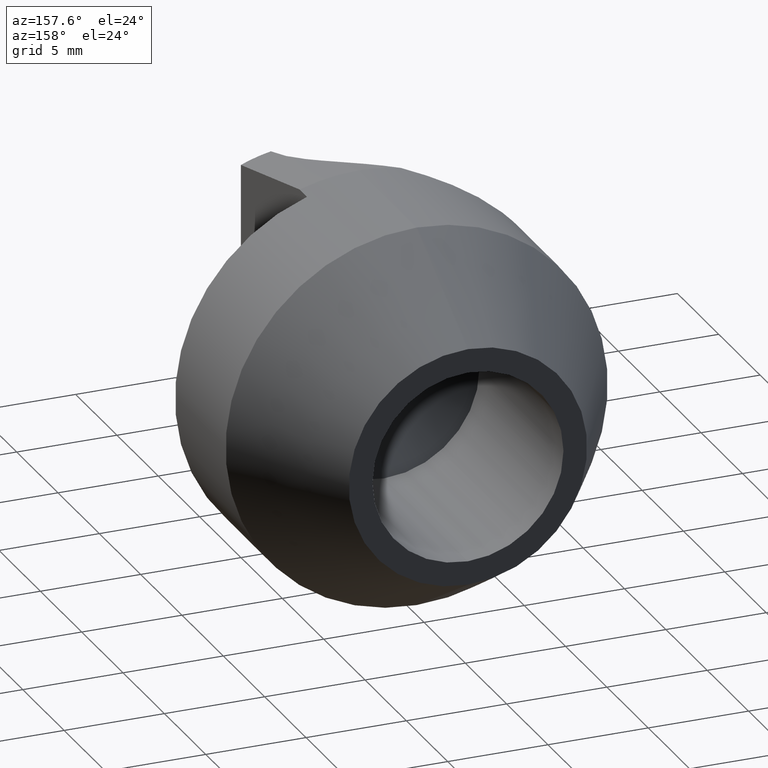
[diagram: clean part render]
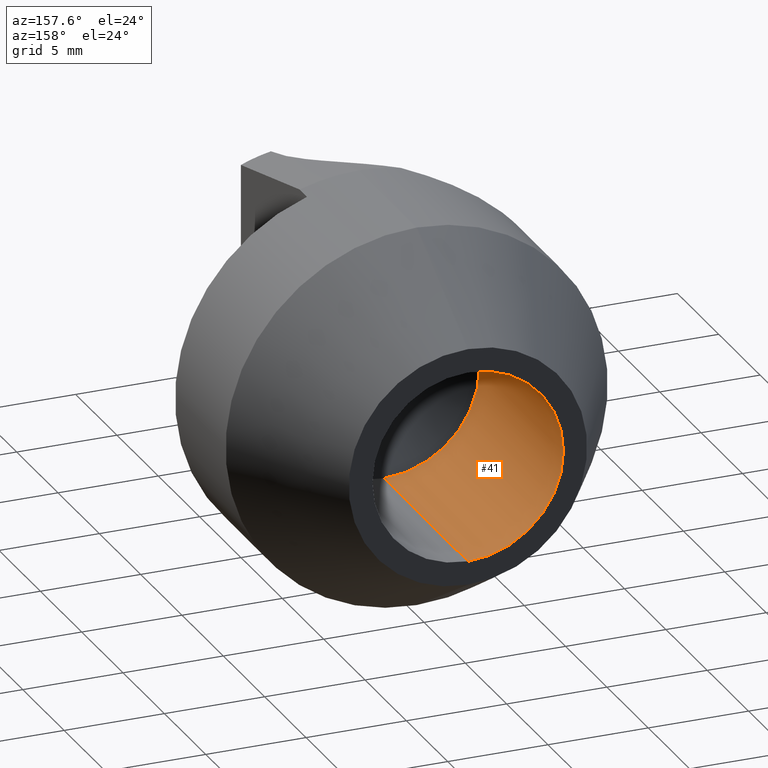
[diagram: same view with one face highlighted and labeled with its STEP entity id]
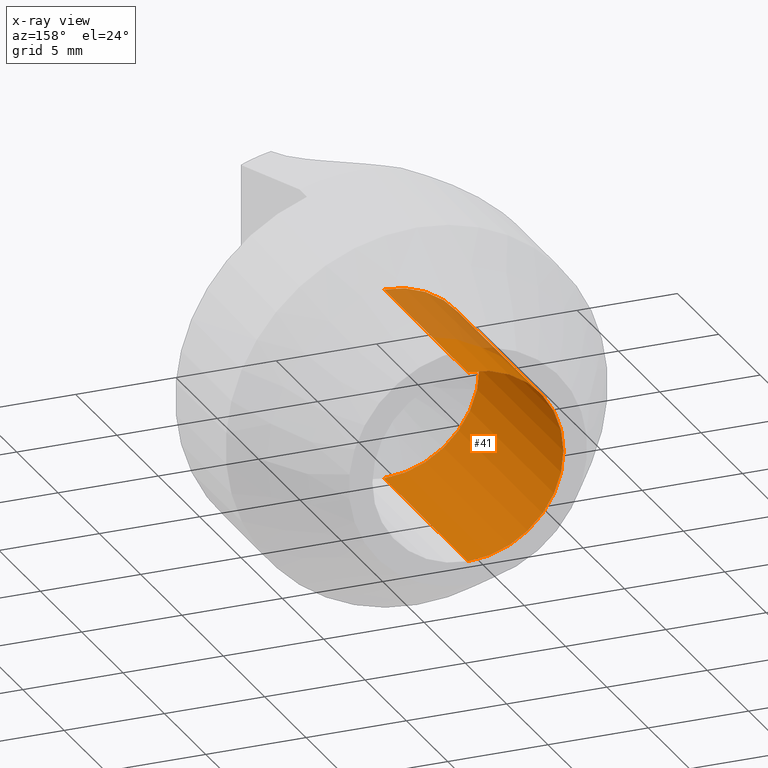
[diagram: x-ray of the same camera — body ghosted, the highlighted face saturated]
A machine part, auxiliary view. The second image highlights one B-rep face of the part: STEP entity #41.
The next image is the same camera in x-ray: the body ghosted, the highlighted face saturated — about 12% of this face is hidden behind the body in this view.
In plain terms, the highlighted cylindrical surface (partial cylindrical patch) has radius 4.7625 mm, axis along (-0, 1, -0).
Its self-contained STEP definition (entity closure, byte-faithful):
#8 = AXIS2_PLACEMENT_3D ( 'NONE', #470, #263, #225 ) ;
#29 = VERTEX_POINT ( 'NONE', #527 ) ;
#41 = ADVANCED_FACE ( 'NONE', ( #85 ), #133, .F. ) ;
#61 = LINE ( 'NONE', #500, #315 ) ;
#66 = DIRECTION ( 'NONE',  ( 0.000000000000000000, 0.000000000000000000, 1.000000000000000000 ) ) ;
#85 = FACE_OUTER_BOUND ( 'NONE', #352, .T. ) ;
#96 = AXIS2_PLACEMENT_3D ( 'NONE', #515, #377, #66 ) ;
#104 = DIRECTION ( 'NONE',  ( -0.000000000000000000, 1.000000000000000000, -0.000000000000000000 ) ) ;
#120 = VERTEX_POINT ( 'NONE', #195 ) ;
#126 = ORIENTED_EDGE ( 'NONE', *, *, #131, .F. ) ;
#131 = EDGE_CURVE ( 'NONE', #29, #251, #61, .T. ) ;
#133 = CYLINDRICAL_SURFACE ( 'NONE', #8, 0.1874999999999998890 ) ;
#137 = CARTESIAN_POINT ( 'NONE',  ( 2.296212748401285877E-17, 0.8000000000000000444, -0.1874999999999998890 ) ) ;
#144 = AXIS2_PLACEMENT_3D ( 'NONE', #360, #479, #313 ) ;
#195 = CARTESIAN_POINT ( 'NONE',  ( 2.296212748401286185E-17, 0.8000000000000000444, -0.1874999999999999167 ) ) ;
#225 = DIRECTION ( 'NONE',  ( 0.000000000000000000, 0.000000000000000000, 1.000000000000000000 ) ) ;
#238 = CARTESIAN_POINT ( 'NONE',  ( 2.296212748401285260E-17, 0.4000000000000000777, -0.1874999999999998335 ) ) ;
#250 = CARTESIAN_POINT ( 'NONE',  ( 0.000000000000000000, 0.8000000000000000444, 0.1874999999999999167 ) ) ;
#251 = VERTEX_POINT ( 'NONE', #250 ) ;
#263 = DIRECTION ( 'NONE',  ( -0.000000000000000000, 1.000000000000000000, -0.000000000000000000 ) ) ;
#279 = EDGE_CURVE ( 'NONE', #120, #251, #523, .T. ) ;
#291 = VECTOR ( 'NONE', #487, 39.37007874015748143 ) ;
#303 = VERTEX_POINT ( 'NONE', #238 ) ;
#313 = DIRECTION ( 'NONE',  ( 0.000000000000000000, 0.000000000000000000, 1.000000000000000000 ) ) ;
#315 = VECTOR ( 'NONE', #104, 39.37007874015748143 ) ;
#345 = CIRCLE ( 'NONE', #144, 0.1874999999999998335 ) ;
#352 = EDGE_LOOP ( 'NONE', ( #411, #510, #368, #126 ) ) ;
#354 = LINE ( 'NONE', #137, #291 ) ;
#360 = CARTESIAN_POINT ( 'NONE',  ( 0.000000000000000000, 0.4000000000000000777, 0.000000000000000000 ) ) ;
#368 = ORIENTED_EDGE ( 'NONE', *, *, #279, .T. ) ;
#377 = DIRECTION ( 'NONE',  ( -0.000000000000000000, 1.000000000000000000, -0.000000000000000000 ) ) ;
#411 = ORIENTED_EDGE ( 'NONE', *, *, #465, .F. ) ;
#465 = EDGE_CURVE ( 'NONE', #303, #29, #345, .T. ) ;
#470 = CARTESIAN_POINT ( 'NONE',  ( 0.000000000000000000, 0.8000000000000000444, 0.000000000000000000 ) ) ;
#479 = DIRECTION ( 'NONE',  ( -0.000000000000000000, 1.000000000000000000, -0.000000000000000000 ) ) ;
#487 = DIRECTION ( 'NONE',  ( -0.000000000000000000, 1.000000000000000000, -0.000000000000000000 ) ) ;
#500 = CARTESIAN_POINT ( 'NONE',  ( 0.000000000000000000, 0.8000000000000000444, 0.1874999999999998890 ) ) ;
#510 = ORIENTED_EDGE ( 'NONE', *, *, #544, .T. ) ;
#515 = CARTESIAN_POINT ( 'NONE',  ( 0.000000000000000000, 0.8000000000000000444, 0.000000000000000000 ) ) ;
#523 = CIRCLE ( 'NONE', #96, 0.1874999999999999167 ) ;
#527 = CARTESIAN_POINT ( 'NONE',  ( 0.000000000000000000, 0.4000000000000000777, 0.1874999999999998335 ) ) ;
#544 = EDGE_CURVE ( 'NONE', #303, #120, #354, .T. ) ;